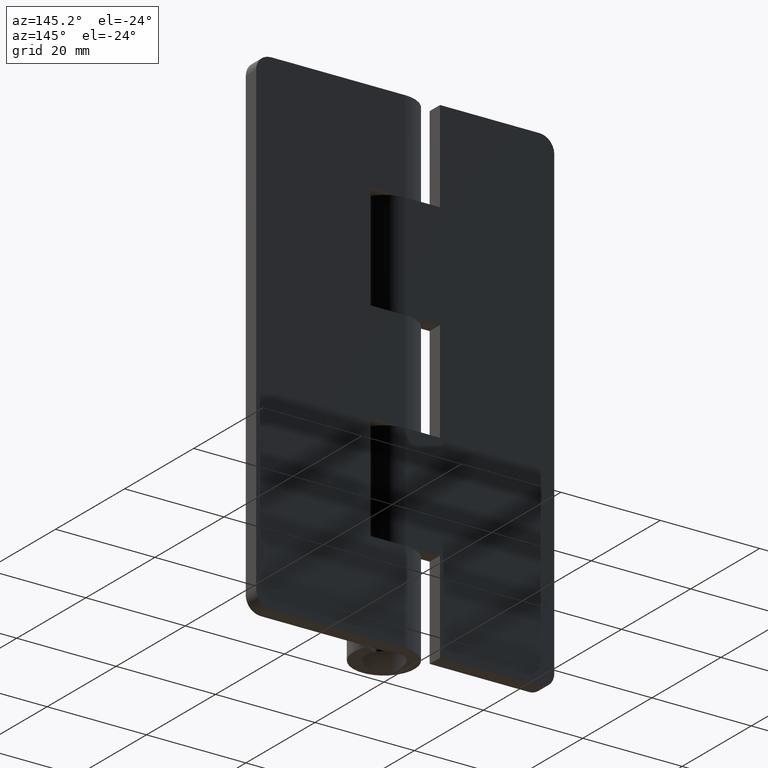
[diagram: clean part render]
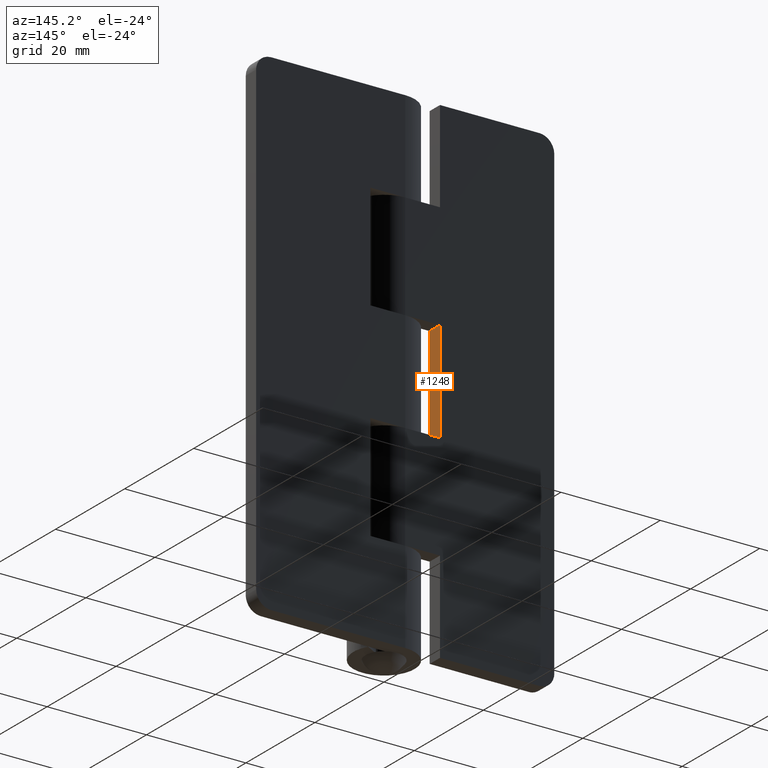
[diagram: same view with one face highlighted and labeled with its STEP entity id]
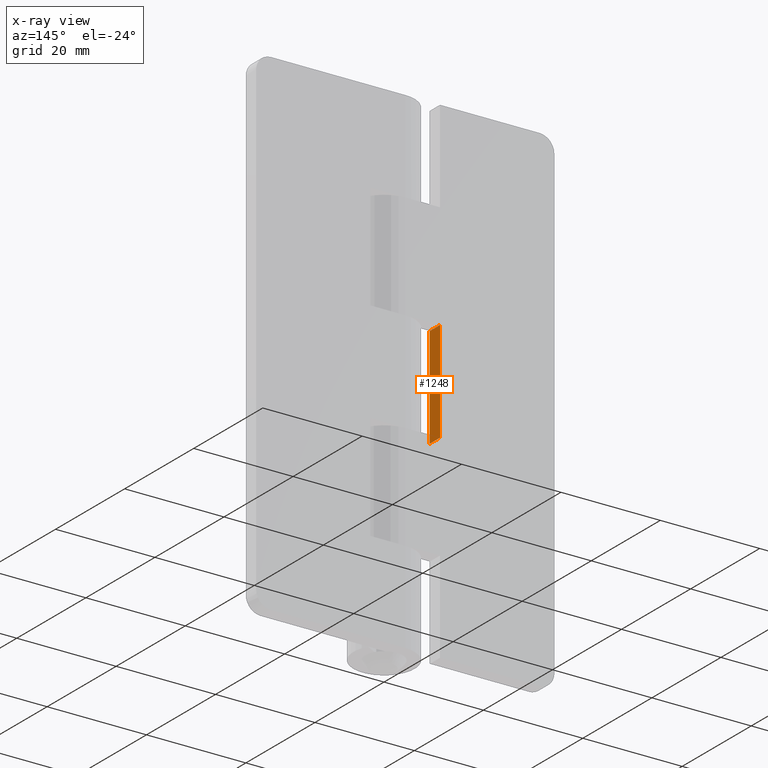
[diagram: x-ray of the same camera — body ghosted, the highlighted face saturated]
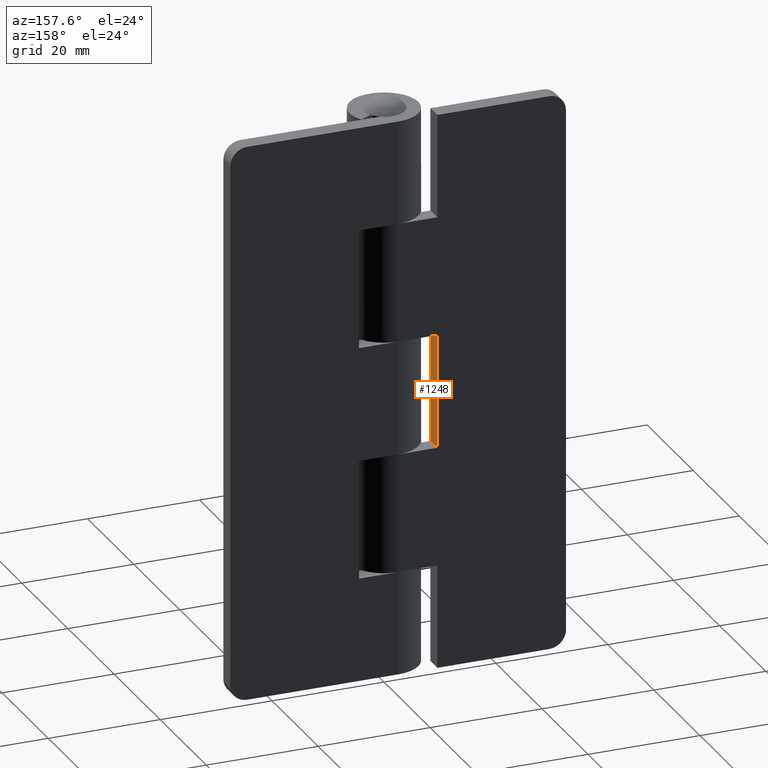
[diagram: same view with one face highlighted and labeled with its STEP entity id]
A machine part, auxiliary view. The second image highlights one B-rep face of the part: STEP entity #1248.
The next image is the same camera in x-ray: the body ghosted, the highlighted face saturated — about 0% of this face is hidden behind the body in this view.
A second angle (auxiliary view) of the same face is appended — the face is thin or edge-on in the first view.
In plain terms, the highlighted face is a freeform B-spline surface patch.
Its self-contained STEP definition (entity closure, byte-faithful):
#1148=CARTESIAN_POINT('',(-7.000000000000100,6.150000000000000,39.799999999999997));
#1149=VERTEX_POINT('',#1148);
#1157=CARTESIAN_POINT('',(-7.000000000000100,3.150000000000000,39.799999999999997));
#1158=VERTEX_POINT('',#1157);
#1159=CARTESIAN_POINT('',(-7.000000000000100,3.150000000000000,39.799999999999997));
#1160=CARTESIAN_POINT('',(-7.000000000000100,6.150000000000000,39.799999999999997));
#1161=QUASI_UNIFORM_CURVE('',1,(#1159,#1160),.UNSPECIFIED.,.F.,.U.);
#1162=EDGE_CURVE('',#1158,#1149,#1161,.T.);
#1221=CARTESIAN_POINT('',(-7.000000000000100,3.000150090300142,61.218980917963883));
#1222=CARTESIAN_POINT('',(-7.000000000000100,3.000150090300142,38.781019446816572));
#1223=CARTESIAN_POINT('',(-7.000000000000100,6.299850070632400,61.218980917963883));
#1224=CARTESIAN_POINT('',(-7.000000000000100,6.299850070632400,38.781019446816572));
#1225=B_SPLINE_SURFACE_WITH_KNOTS('',1,1,((#1221,#1223),(#1222,#1224)),.UNSPECIFIED.,.F.,.F.,.U.,(2,2),(2,2),(0.0,22.437961471147300),(0.0,3.299699980332258),.UNSPECIFIED.);
#1226=ORIENTED_EDGE('',*,*,#1162,.T.);
#1227=CARTESIAN_POINT('',(-7.000000000000100,6.150000000000000,60.200000000000003));
#1228=VERTEX_POINT('',#1227);
#1229=CARTESIAN_POINT('',(-7.000000000000100,6.150000000000000,60.200000000000003));
#1230=CARTESIAN_POINT('',(-7.000000000000100,6.150000000000000,39.799999999999997));
#1231=QUASI_UNIFORM_CURVE('',1,(#1229,#1230),.UNSPECIFIED.,.F.,.U.);
#1232=EDGE_CURVE('',#1228,#1149,#1231,.T.);
#1233=ORIENTED_EDGE('',*,*,#1232,.F.);
#1234=CARTESIAN_POINT('',(-7.000000000000100,3.150000000000000,60.200000000000003));
#1235=VERTEX_POINT('',#1234);
#1236=CARTESIAN_POINT('',(-7.000000000000100,3.150000000000000,60.200000000000003));
#1237=CARTESIAN_POINT('',(-7.000000000000100,6.150000000000000,60.200000000000003));
#1238=QUASI_UNIFORM_CURVE('',1,(#1236,#1237),.UNSPECIFIED.,.F.,.U.);
#1239=EDGE_CURVE('',#1235,#1228,#1238,.T.);
#1240=ORIENTED_EDGE('',*,*,#1239,.F.);
#1241=CARTESIAN_POINT('',(-7.000000000000100,3.150000000000000,39.799999999999997));
#1242=CARTESIAN_POINT('',(-7.000000000000100,3.150000000000000,60.200000000000003));
#1243=QUASI_UNIFORM_CURVE('',1,(#1241,#1242),.UNSPECIFIED.,.F.,.U.);
#1244=EDGE_CURVE('',#1158,#1235,#1243,.T.);
#1245=ORIENTED_EDGE('',*,*,#1244,.F.);
#1246=EDGE_LOOP('',(#1226,#1233,#1240,#1245));
#1247=FACE_OUTER_BOUND('',#1246,.T.);
#1248=ADVANCED_FACE('',(#1247),#1225,.T.);